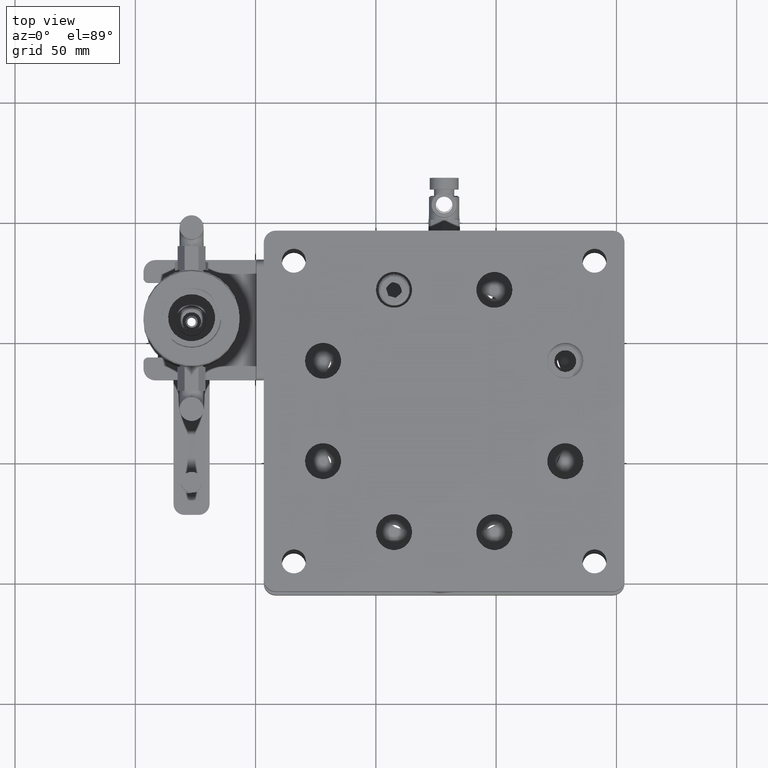
[diagram: clean part render]
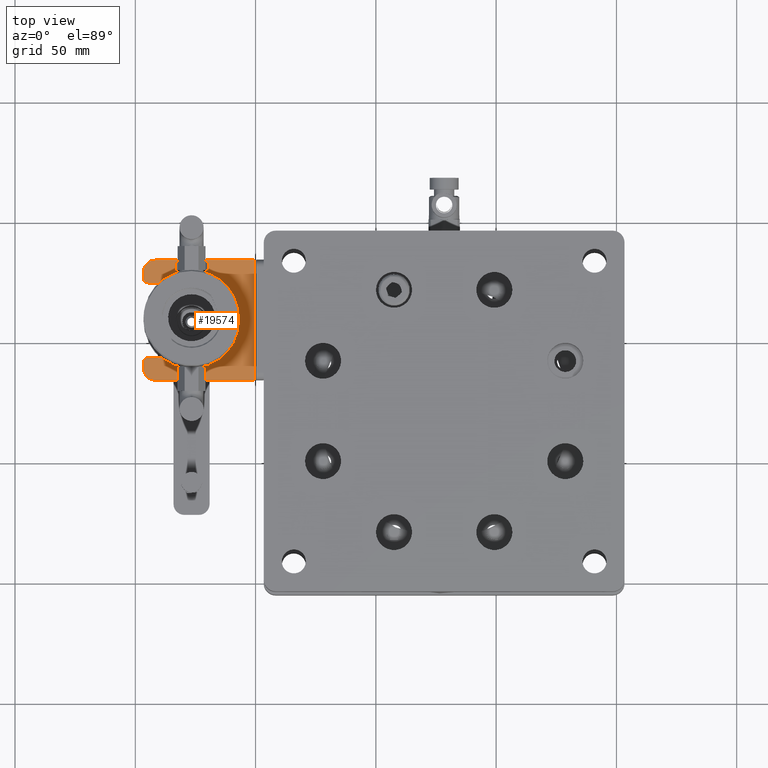
[diagram: same view with one face highlighted and labeled with its STEP entity id]
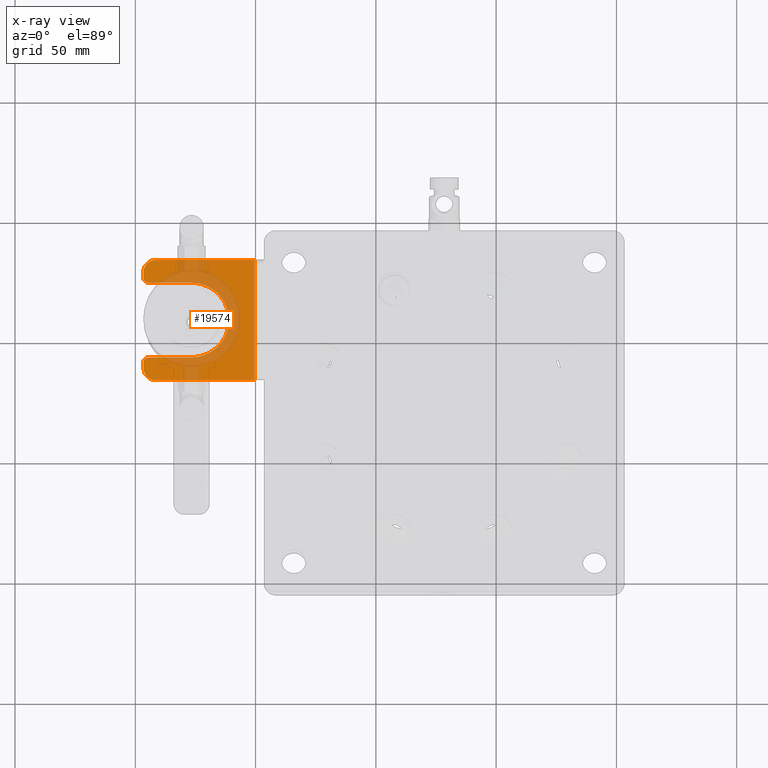
[diagram: x-ray of the same camera — body ghosted, the highlighted face saturated]
A machine part, top view. The second image highlights one B-rep face of the part: STEP entity #19574.
The next image is the same camera in x-ray: the body ghosted, the highlighted face saturated — about 33% of this face is hidden behind the body in this view.
In plain terms, the highlighted planar face has unit normal (0, -0, -1).
Its self-contained STEP definition (entity closure, byte-faithful):
#14 = VERTEX_POINT ( 'NONE', #24655 ) ;
#22 = LINE ( 'NONE', #19989, #2747 ) ;
#331 = EDGE_CURVE ( 'NONE', #22707, #14, #22, .T. ) ;
#335 = CARTESIAN_POINT ( 'NONE',  ( 31.80739317009367895, -4.941664590774364818, 206.9977288244027989 ) ) ;
#595 = CARTESIAN_POINT ( 'NONE',  ( 26.17114597159121203, -7.178598920431192631, 206.9977288244027989 ) ) ;
#854 = CARTESIAN_POINT ( 'NONE',  ( 23.85554052902556776, -7.431651882863382852, 206.9977288244028557 ) ) ;
#987 = CARTESIAN_POINT ( 'NONE',  ( 38.62854838633338517, 10.85789273996218895, 206.9977288244028557 ) ) ;
#1091 = VERTEX_POINT ( 'NONE', #9174 ) ;
#1113 = CARTESIAN_POINT ( 'NONE',  ( 37.43528226001209447, 1.521029408966009244, 206.9977288244028273 ) ) ;
#1224 = ORIENTED_EDGE ( 'NONE', *, *, #4713, .F. ) ;
#1225 = LINE ( 'NONE', #23293, #24732 ) ;
#1238 = CARTESIAN_POINT ( 'NONE',  ( 35.09811851442083253, 18.27208861365406989, 206.9977288244027704 ) ) ;
#1377 = CARTESIAN_POINT ( 'NONE',  ( 38.64398118336313814, 10.77216579050709910, 206.9977288244028273 ) ) ;
#1503 = CARTESIAN_POINT ( 'NONE',  ( 8.381601348765686410, 33.06834811713662248, 206.9977288244026852 ) ) ;
#1504 = CARTESIAN_POINT ( 'NONE',  ( 37.27626597196371705, 14.97285608896639175, 206.9977288244027989 ) ) ;
#2026 = ORIENTED_EDGE ( 'NONE', *, *, #24084, .F. ) ;
#2310 = CARTESIAN_POINT ( 'NONE',  ( 28.67650398158892244, -6.500196550344449875, 206.9977288244027704 ) ) ;
#2455 = DIRECTION ( 'NONE',  ( 3.367708973580515638E-15, -4.440892098500624683E-16, -1.000000000000000000 ) ) ;
#2747 = VECTOR ( 'NONE', #17743, 1000.000000000000000 ) ;
#2832 = CARTESIAN_POINT ( 'NONE',  ( 33.58534184529314359, -3.648169048505090384, 206.9977288244028841 ) ) ;
#2868 = DIRECTION ( 'NONE',  ( -1.705100911579236852E-17, 1.000000000000000000, -5.742283640785712774E-32 ) ) ;
#2961 = CARTESIAN_POINT ( 'NONE',  ( 29.92892005693684254, 22.12202902838191676, 206.9977288244027989 ) ) ;
#2985 = EDGE_CURVE ( 'NONE', #14749, #4893, #1225, .T. ) ;
#2991 = CARTESIAN_POINT ( 'NONE',  ( 3.381601348765660209, -7.431651882863383740, 206.9977288244028273 ) ) ;
#3013 = LINE ( 'NONE', #9368, #16236 ) ;
#3090 = CARTESIAN_POINT ( 'NONE',  ( 35.82381958607199834, -1.182059133337275636, 206.9977288244028273 ) ) ;
#3215 = CARTESIAN_POINT ( 'NONE',  ( 31.42509691014484119, 21.32832218693843629, 206.9977288244027989 ) ) ;
#3340 = CARTESIAN_POINT ( 'NONE',  ( 38.58151739534483227, 5.031967247320956460, 206.9977288244028273 ) ) ;
#3478 = CARTESIAN_POINT ( 'NONE',  ( 36.20692307798516651, -0.6360171220128838510, 206.9977288244028557 ) ) ;
#3523 = DIRECTION ( 'NONE',  ( 3.364129091754579954E-15, -4.440892098500624683E-16, -1.000000000000000000 ) ) ;
#3650 = FACE_OUTER_BOUND ( 'NONE', #23993, .T. ) ;
#3668 = CARTESIAN_POINT ( 'NONE',  ( 5.381601348765688186, -7.431651882863383740, 206.9977288244027704 ) ) ;
#3678 = AXIS2_PLACEMENT_3D ( 'NONE', #24526, #2455, #8288 ) ;
#3734 = CARTESIAN_POINT ( 'NONE',  ( 26.26380947766714868, 23.29805025608051849, 206.9977288244028557 ) ) ;
#4125 = CARTESIAN_POINT ( 'NONE',  ( 28.61984845075607709, 22.66505327936793535, 206.9977288244027989 ) ) ;
#4294 = CARTESIAN_POINT ( 'NONE',  ( 25.79367775280923780, -7.243641637335971772, 206.9977288244027420 ) ) ;
#4315 = AXIS2_PLACEMENT_3D ( 'NONE', #23988, #10014, #22148 ) ;
#4423 = CARTESIAN_POINT ( 'NONE',  ( 25.38448072788018095, -7.304963975482907657, 206.9977288244028273 ) ) ;
#4557 = CARTESIAN_POINT ( 'NONE',  ( 23.38160134876569174, -7.431651882863382852, 206.9977288244027989 ) ) ;
#4622 = CARTESIAN_POINT ( 'NONE',  ( 5.381601348765686410, 23.56834811713662958, 206.9977288244026568 ) ) ;
#4713 = EDGE_CURVE ( 'NONE', #4893, #22707, #24767, .T. ) ;
#4812 = CARTESIAN_POINT ( 'NONE',  ( 29.57392910479502390, -6.150645970511837923, 206.9977288244027989 ) ) ;
#4893 = VERTEX_POINT ( 'NONE', #11453 ) ;
#4902 = CARTESIAN_POINT ( 'NONE',  ( 49.64500134876569604, 8.068348117136622477, 206.9977288244028557 ) ) ;
#4937 = CARTESIAN_POINT ( 'NONE',  ( 33.96357542852532418, 19.40671053146514069, 206.9977288244028273 ) ) ;
#5065 = CARTESIAN_POINT ( 'NONE',  ( 38.53764446191755866, 4.816758490882826038, 206.9977288244028273 ) ) ;
#5160 = DIRECTION ( 'NONE',  ( -1.493973430190899685E-30, -1.000000000000000000, 4.440892098500624683E-16 ) ) ;
#5197 = CARTESIAN_POINT ( 'NONE',  ( 29.51066982273448147, 22.30616982117612679, 206.9977288244027420 ) ) ;
#5322 = CARTESIAN_POINT ( 'NONE',  ( 33.37013916568623983, 19.94202542535509792, 206.9977288244027989 ) ) ;
#5443 = B_SPLINE_CURVE_WITH_KNOTS ( 'NONE', 3,
 ( #4557, #854, #14357, #4423, #4294, #18710, #18443, #10520, #595, #12376, #8788, #12629, #2310, #16851, #8659, #16724, #6677, #4812, #24892, #6807, #14743, #10394, #14876, #335, #20944, #2832, #13150, #21196, #3090, #13409, #3478, #15390, #17107, #11043, #25544, #1113, #15125, #9442, #9049, #11431, #23170, #19612, #11171, #19097, #5065, #3340, #21449, #19227, #19485, #23434, #5450, #11302, #25023, #13536, #9178, #11562, #1377, #7324, #987, #19351, #21321, #9574, #21585, #17504, #7451, #15515, #25150, #7189, #1504, #6931, #17235, #14998, #13280, #7056, #25279, #1238, #4937, #5322, #15260, #23046, #23558, #13019, #21065, #3215, #23308, #2961, #5197, #9309, #17373, #25418, #20253, #4125, #19741, #5712, #13792, #21841, #5986, #3734, #23950, #11809, #9694, #19868 ),
 .UNSPECIFIED., .F., .F.,
 ( 4, 1, 1, 1, 1, 2, 2, 1, 1, 1, 1, 2, 2, 1, 1, 1, 2, 2, 2, 1, 1, 1, 2, 2, 1, 1, 1, 1, 2, 2, 1, 1, 1, 1, 2, 2, 2, 1, 1, 1, 1, 2, 2, 1, 1, 1, 1, 2, 2, 1, 1, 1, 2, 2, 2, 1, 1, 1, 2, 2, 1, 1, 1, 1, 2, 2, 1, 1, 1, 1, 2, 2, 4 ),
 ( 0.000000000000000000, 0.03125000000000197065, 0.04687500000000295597, 0.05468750000000344863, 0.05859375000000368455, 0.06054687500000369149, 0.06250000000000369149, 0.09375000000000213718, 0.1093750000000013600, 0.1171875000000009714, 0.1210937500000007772, 0.1230468750000005829, 0.1250000000000003886, 0.1562499999999967804, 0.1718749999999950595, 0.1796874999999941436, 0.1835937499999936995, 0.1874999999999932554, 0.2499999999999877875, 0.2812499999999851785, 0.2968749999999837352, 0.3046874999999831246, 0.3085937499999827360, 0.3124999999999822919, 0.3437499999999789613, 0.3593749999999773515, 0.3671874999999766298, 0.3710937499999764078, 0.3730468749999762967, 0.3749999999999761857, 0.4062499999999730771, 0.4218749999999715228, 0.4296874999999708011, 0.4335937499999704681, 0.4355468749999702460, 0.4374999999999700240, 0.4999999999999645284, 0.5312499999999618083, 0.5468749999999604761, 0.5546874999999598099, 0.5585937499999594769, 0.5605468749999593658, 0.5624999999999592548, 0.5937499999999596989, 0.6093749999999599209, 0.6171874999999600320, 0.6210937499999601430, 0.6230468749999602540, 0.6249999999999603650, 0.6562499999999618083, 0.6718749999999624745, 0.6796874999999628075, 0.6835937499999630296, 0.6874999999999632516, 0.7499999999999679146, 0.7812499999999704681, 0.7968749999999716893, 0.8046874999999721334, 0.8085937499999723554, 0.8124999999999725775, 0.8437499999999769074, 0.8593749999999791278, 0.8671874999999803491, 0.8710937499999809042, 0.8730468749999812372, 0.8749999999999815703, 0.9062499999999872324, 0.9218749999999900080, 0.9296874999999913403, 0.9335937499999920064, 0.9355468749999923395, 0.9374999999999926725, 1.000000000000000000 ),
 .UNSPECIFIED. ) ;
#5450 = CARTESIAN_POINT ( 'NONE',  ( 38.88156892279152999, 7.120645015925630261, 206.9977288244028273 ) ) ;
#5712 = CARTESIAN_POINT ( 'NONE',  ( 27.06137408492132934, 23.12897805478881708, 206.9977288244027989 ) ) ;
#5840 = DIRECTION ( 'NONE',  ( -1.000000000000000000, -1.705100911579087400E-17, 7.572169165377782691E-33 ) ) ;
#5986 = CARTESIAN_POINT ( 'NONE',  ( 26.32551049407440402, 23.28624535211575974, 206.9977288244028273 ) ) ;
#6247 = VERTEX_POINT ( 'NONE', #21913 ) ;
#6270 = CARTESIAN_POINT ( 'NONE',  ( 5.381601348765685522, -9.431651882863384628, 206.9977288244026852 ) ) ;
#6677 = CARTESIAN_POINT ( 'NONE',  ( 29.05664061211095728, -6.355415835507248090, 206.9977288244028841 ) ) ;
#6740 = VECTOR ( 'NONE', #5160, 1000.000000000000000 ) ;
#6807 = CARTESIAN_POINT ( 'NONE',  ( 31.08529475229357075, -5.386257587535075331, 206.9977288244027704 ) ) ;
#6872 = CIRCLE ( 'NONE', #4315, 5.000000000000000888 ) ;
#6931 = CARTESIAN_POINT ( 'NONE',  ( 36.83620705342710977, 15.77204152068522802, 206.9977288244027989 ) ) ;
#7056 = CARTESIAN_POINT ( 'NONE',  ( 36.39161405667800153, 16.49413993846306425, 206.9977288244027704 ) ) ;
#7189 = CARTESIAN_POINT ( 'NONE',  ( 37.60059543640630864, 14.26067587318174645, 206.9977288244028273 ) ) ;
#7310 = ORIENTED_EDGE ( 'NONE', *, *, #15334, .F. ) ;
#7324 = CARTESIAN_POINT ( 'NONE',  ( 38.63353426976330951, 10.83048168520702426, 206.9977288244029410 ) ) ;
#7451 = CARTESIAN_POINT ( 'NONE',  ( 37.83913358294720553, 13.65679710044171813, 206.9977288244028273 ) ) ;
#7553 = CIRCLE ( 'NONE', #21908, 2.000000000000000000 ) ;
#7947 = VERTEX_POINT ( 'NONE', #20251 ) ;
#8238 = VERTEX_POINT ( 'NONE', #9498 ) ;
#8246 = ORIENTED_EDGE ( 'NONE', *, *, #9523, .F. ) ;
#8269 = EDGE_CURVE ( 'NONE', #8238, #7947, #3013, .T. ) ;
#8288 = DIRECTION ( 'NONE',  ( 1.000000000000000000, 2.081668171172168119E-15, 5.551115123125781913E-15 ) ) ;
#8434 = LINE ( 'NONE', #20980, #13943 ) ;
#8503 = CARTESIAN_POINT ( 'NONE',  ( 3.381601348765684634, -11.93165188286338996, 206.9977288244026568 ) ) ;
#8659 = CARTESIAN_POINT ( 'NONE',  ( 28.97005033207094016, -6.389184117044481859, 206.9977288244028557 ) ) ;
#8788 = CARTESIAN_POINT ( 'NONE',  ( 27.42737405463771694, -6.909208616216139909, 206.9977288244027989 ) ) ;
#8865 = AXIS2_PLACEMENT_3D ( 'NONE', #21630, #3523, #11604 ) ;
#8900 = ORIENTED_EDGE ( 'NONE', *, *, #331, .F. ) ;
#8978 = ORIENTED_EDGE ( 'NONE', *, *, #18072, .F. ) ;
#9049 = CARTESIAN_POINT ( 'NONE',  ( 37.74464125930790459, 2.241325941414797907, 206.9977288244028557 ) ) ;
#9174 = CARTESIAN_POINT ( 'NONE',  ( 23.38160134876569174, -7.431651882863382852, 206.9977288244027989 ) ) ;
#9178 = CARTESIAN_POINT ( 'NONE',  ( 38.69360351630649575, 10.48035742972604112, 206.9977288244028273 ) ) ;
#9309 = CARTESIAN_POINT ( 'NONE',  ( 29.29953836504928333, 22.39439878118596639, 206.9977288244027989 ) ) ;
#9368 = CARTESIAN_POINT ( 'NONE',  ( 50.38160134876569884, -16.93165188286338463, 206.9977288244028557 ) ) ;
#9412 = EDGE_CURVE ( 'NONE', #12245, #6247, #19898, .T. ) ;
#9442 = CARTESIAN_POINT ( 'NONE',  ( 37.70765201281538026, 2.150411100853199642, 206.9977288244027704 ) ) ;
#9498 = CARTESIAN_POINT ( 'NONE',  ( 49.64500134876569604, -16.93165188286338463, 206.9977288244028273 ) ) ;
#9523 = EDGE_CURVE ( 'NONE', #14780, #17761, #7553, .T. ) ;
#9574 = CARTESIAN_POINT ( 'NONE',  ( 38.09672769440106777, 12.94977974610758764, 206.9977288244028841 ) ) ;
#9694 = CARTESIAN_POINT ( 'NONE',  ( 24.32983524972316047, 23.56834811713662248, 206.9977288244027704 ) ) ;
#10014 = DIRECTION ( 'NONE',  ( 3.367708973580515638E-15, -4.440892098500624683E-16, -1.000000000000000000 ) ) ;
#10125 = EDGE_CURVE ( 'NONE', #12245, #14749, #11810, .T. ) ;
#10388 = DIRECTION ( 'NONE',  ( 3.367708973580515638E-15, -4.440892098500624683E-16, -1.000000000000000000 ) ) ;
#10394 = CARTESIAN_POINT ( 'NONE',  ( 31.64312534292722390, -5.046599172553468904, 206.9977288244028273 ) ) ;
#10453 = EDGE_CURVE ( 'NONE', #1091, #17761, #20974, .T. ) ;
#10520 = CARTESIAN_POINT ( 'NONE',  ( 26.14374569939121784, -7.183582808903611117, 206.9977288244028273 ) ) ;
#10766 = EDGE_CURVE ( 'NONE', #18539, #14780, #8434, .T. ) ;
#10960 = DIRECTION ( 'NONE',  ( -1.000000000000000000, -1.646870496244552803E-16, 7.313574174026246242E-32 ) ) ;
#11043 = CARTESIAN_POINT ( 'NONE',  ( 36.64157541856836531, 0.02485255575787892815, 206.9977288244028273 ) ) ;
#11171 = CARTESIAN_POINT ( 'NONE',  ( 38.22073570081374783, 3.541146773029060668, 206.9977288244028557 ) ) ;
#11302 = CARTESIAN_POINT ( 'NONE',  ( 38.88161756175276196, 8.542199667742130131, 206.9977288244027989 ) ) ;
#11431 = CARTESIAN_POINT ( 'NONE',  ( 37.76911783142732304, 2.302031375150336068, 206.9977288244028841 ) ) ;
#11453 = CARTESIAN_POINT ( 'NONE',  ( 3.381601348765682857, 28.06834811713661537, 206.9977288244026568 ) ) ;
#11562 = CARTESIAN_POINT ( 'NONE',  ( 38.65939875682200721, 10.68466979807513795, 206.9977288244028273 ) ) ;
#11604 = DIRECTION ( 'NONE',  ( -1.000000000000000000, 0.000000000000000000, -3.364129091754579954E-15 ) ) ;
#11809 = CARTESIAN_POINT ( 'NONE',  ( 25.26997768718590365, 23.48209252062226327, 206.9977288244028557 ) ) ;
#11810 = CIRCLE ( 'NONE', #23191, 2.000000000000000000 ) ;
#12038 = DIRECTION ( 'NONE',  ( 1.000000000000000000, 0.000000000000000000, 0.000000000000000000 ) ) ;
#12160 = ORIENTED_EDGE ( 'NONE', *, *, #2985, .F. ) ;
#12245 = VERTEX_POINT ( 'NONE', #4622 ) ;
#12376 = CARTESIAN_POINT ( 'NONE',  ( 26.69615169415746081, -7.081463859545717554, 206.9977288244027704 ) ) ;
#12629 = CARTESIAN_POINT ( 'NONE',  ( 28.26303297773748824, -6.646778228496435403, 206.9977288244027989 ) ) ;
#13019 = CARTESIAN_POINT ( 'NONE',  ( 31.97506838082204439, 20.96822413220792569, 206.9977288244028273 ) ) ;
#13150 = CARTESIAN_POINT ( 'NONE',  ( 34.71996376308921128, -2.513625962629751243, 206.9977288244028841 ) ) ;
#13280 = CARTESIAN_POINT ( 'NONE',  ( 36.42634087111913743, 16.44026866265852860, 206.9977288244027989 ) ) ;
#13409 = CARTESIAN_POINT ( 'NONE',  ( 36.09409177217760600, -0.8015467851534051613, 206.9977288244027989 ) ) ;
#13536 = CARTESIAN_POINT ( 'NONE',  ( 38.75493472093075553, 10.07111248232975598, 206.9977288244028273 ) ) ;
#13568 = CARTESIAN_POINT ( 'NONE',  ( 3.381601348765666870, 23.56834811713662603, 206.9977288244026568 ) ) ;
#13587 = PLANE ( 'NONE',  #8865 ) ;
#13792 = CARTESIAN_POINT ( 'NONE',  ( 26.63319097501564769, 23.22439123029051800, 206.9977288244027704 ) ) ;
#13943 = VECTOR ( 'NONE', #2868, 1000.000000000000000 ) ;
#14357 = CARTESIAN_POINT ( 'NONE',  ( 24.56354832826900747, -7.399306034170497703, 206.9977288244027989 ) ) ;
#14743 = CARTESIAN_POINT ( 'NONE',  ( 31.47696459648745915, -5.150809492424097691, 206.9977288244028273 ) ) ;
#14749 = VERTEX_POINT ( 'NONE', #24769 ) ;
#14780 = VERTEX_POINT ( 'NONE', #18841 ) ;
#14876 = CARTESIAN_POINT ( 'NONE',  ( 31.75352189428375738, -4.976391405218720365, 206.9977288244027989 ) ) ;
#14998 = CARTESIAN_POINT ( 'NONE',  ( 36.49654863845216823, 16.32987211130543415, 206.9977288244027989 ) ) ;
#15125 = CARTESIAN_POINT ( 'NONE',  ( 37.61942305280585686, 1.939279643168144718, 206.9977288244027989 ) ) ;
#15260 = CARTESIAN_POINT ( 'NONE',  ( 32.63200859923076536, 20.51056635444949094, 206.9977288244027989 ) ) ;
#15334 = EDGE_CURVE ( 'NONE', #7947, #18539, #6872, .T. ) ;
#15390 = CARTESIAN_POINT ( 'NONE',  ( 36.28147736383578348, -0.5251189149213634222, 206.9977288244027704 ) ) ;
#15515 = CARTESIAN_POINT ( 'NONE',  ( 37.81636399984287067, 13.71534552269456242, 206.9977288244027704 ) ) ;
#15583 = VECTOR ( 'NONE', #25827, 1000.000000000000000 ) ;
#15998 = CARTESIAN_POINT ( 'NONE',  ( 5.381601348765685522, 25.56834811713663314, 206.9977288244026568 ) ) ;
#16236 = VECTOR ( 'NONE', #10960, 1000.000000000000000 ) ;
#16724 = CARTESIAN_POINT ( 'NONE',  ( 29.02859875432371339, -6.366414533940373488, 206.9977288244028557 ) ) ;
#16851 = CARTESIAN_POINT ( 'NONE',  ( 28.88214986909001780, -6.423064090195424569, 206.9977288244027420 ) ) ;
#17107 = CARTESIAN_POINT ( 'NONE',  ( 36.31921381691558537, -0.4681850123444522005, 206.9977288244027989 ) ) ;
#17235 = CARTESIAN_POINT ( 'NONE',  ( 36.60075895832041226, 16.16371136487049043, 206.9977288244027989 ) ) ;
#17373 = CARTESIAN_POINT ( 'NONE',  ( 29.20862352448761357, 22.43138802767862572, 206.9977288244027420 ) ) ;
#17504 = CARTESIAN_POINT ( 'NONE',  ( 37.87301355609844933, 13.56889663746070518, 206.9977288244027989 ) ) ;
#17608 = ORIENTED_EDGE ( 'NONE', *, *, #9412, .T. ) ;
#17709 = VECTOR ( 'NONE', #5840, 1000.000000000000000 ) ;
#17743 = DIRECTION ( 'NONE',  ( 1.000000000000000000, 1.646870496244552803E-16, -7.313574174026246242E-32 ) ) ;
#17761 = VERTEX_POINT ( 'NONE', #3668 ) ;
#18070 = ORIENTED_EDGE ( 'NONE', *, *, #10766, .F. ) ;
#18072 = EDGE_CURVE ( 'NONE', #14, #8238, #23010, .T. ) ;
#18438 = DIRECTION ( 'NONE',  ( -1.000000000000000000, 0.000000000000000000, 0.000000000000000000 ) ) ;
#18443 = CARTESIAN_POINT ( 'NONE',  ( 26.08544007379140695, -7.194027822544017958, 206.9977288244027136 ) ) ;
#18539 = VERTEX_POINT ( 'NONE', #8503 ) ;
#18710 = CARTESIAN_POINT ( 'NONE',  ( 25.99795897155463820, -7.209442641061728274, 206.9977288244028841 ) ) ;
#18841 = CARTESIAN_POINT ( 'NONE',  ( 3.381601348765685522, -9.431651882863384628, 206.9977288244026852 ) ) ;
#19081 = DIRECTION ( 'NONE',  ( -1.705100911579236852E-17, 1.000000000000000000, -5.742283640785712774E-32 ) ) ;
#19097 = CARTESIAN_POINT ( 'NONE',  ( 38.44223128641440468, 4.388575380974423901, 206.9977288244028557 ) ) ;
#19139 = ORIENTED_EDGE ( 'NONE', *, *, #10453, .T. ) ;
#19227 = CARTESIAN_POINT ( 'NONE',  ( 38.61130348770925025, 5.186139988234548248, 206.9977288244027989 ) ) ;
#19351 = CARTESIAN_POINT ( 'NONE',  ( 38.53141332544979036, 11.38289846252775206, 206.9977288244027704 ) ) ;
#19485 = CARTESIAN_POINT ( 'NONE',  ( 38.61744459850714861, 5.218799690656080514, 206.9977288244028273 ) ) ;
#19490 = ORIENTED_EDGE ( 'NONE', *, *, #10125, .F. ) ;
#19574 = ADVANCED_FACE ( 'NONE', ( #3650 ), #13587, .F. ) ;
#19612 = CARTESIAN_POINT ( 'NONE',  ( 37.97830651099435073, 2.830101015141230913, 206.9977288244027989 ) ) ;
#19741 = CARTESIAN_POINT ( 'NONE',  ( 27.90880269286449789, 22.90748246918932551, 206.9977288244027704 ) ) ;
#19868 = CARTESIAN_POINT ( 'NONE',  ( 23.38160134876568463, 23.56834811713662248, 206.9977288244027136 ) ) ;
#19898 = LINE ( 'NONE', #13568, #15583 ) ;
#19989 = CARTESIAN_POINT ( 'NONE',  ( 3.381601348765694848, 33.06834811713662248, 206.9977288244026852 ) ) ;
#20251 = CARTESIAN_POINT ( 'NONE',  ( 8.381601348765681081, -16.93165188286338818, 206.9977288244027704 ) ) ;
#20253 = CARTESIAN_POINT ( 'NONE',  ( 29.11627065298838701, 22.46850512761906060, 206.9977288244027989 ) ) ;
#20562 = ORIENTED_EDGE ( 'NONE', *, *, #8269, .F. ) ;
#20944 = CARTESIAN_POINT ( 'NONE',  ( 32.75870222450286917, -4.319765762402212772, 206.9977288244028841 ) ) ;
#20974 = LINE ( 'NONE', #2991, #17709 ) ;
#20980 = CARTESIAN_POINT ( 'NONE',  ( 3.381601348765685078, -16.93165188286339173, 206.9977288244026852 ) ) ;
#21065 = CARTESIAN_POINT ( 'NONE',  ( 31.91813447824669936, 21.00596058528662624, 206.9977288244027989 ) ) ;
#21196 = CARTESIAN_POINT ( 'NONE',  ( 35.25527865697540619, -1.920189699795691984, 206.9977288244027704 ) ) ;
#21321 = CARTESIAN_POINT ( 'NONE',  ( 38.35915808212153166, 12.11412082300751614, 206.9977288244028273 ) ) ;
#21449 = CARTESIAN_POINT ( 'NONE',  ( 38.59949858374417175, 5.124438971826715594, 206.9977288244028841 ) ) ;
#21585 = CARTESIAN_POINT ( 'NONE',  ( 37.95014601624811945, 13.36325074995937356, 206.9977288244028273 ) ) ;
#21630 = CARTESIAN_POINT ( 'NONE',  ( 50.38160134876572016, 8.068348117136622477, 206.9977288244028557 ) ) ;
#21841 = CARTESIAN_POINT ( 'NONE',  ( 26.41798221857930073, 23.26826416371685013, 206.9977288244027704 ) ) ;
#21908 = AXIS2_PLACEMENT_3D ( 'NONE', #6270, #10388, #18438 ) ;
#21913 = CARTESIAN_POINT ( 'NONE',  ( 23.38160134876568463, 23.56834811713662248, 206.9977288244027136 ) ) ;
#22148 = DIRECTION ( 'NONE',  ( 1.000000000000000000, 1.040834085586084059E-15, 5.551115123125781913E-15 ) ) ;
#22194 = DIRECTION ( 'NONE',  ( 3.367708973580515638E-15, -4.440892098500624683E-16, -1.000000000000000000 ) ) ;
#22707 = VERTEX_POINT ( 'NONE', #1503 ) ;
#23010 = LINE ( 'NONE', #4902, #6740 ) ;
#23046 = CARTESIAN_POINT ( 'NONE',  ( 32.25149625105056828, 20.78083854055238078, 206.9977288244027704 ) ) ;
#23170 = CARTESIAN_POINT ( 'NONE',  ( 37.78175835924829329, 2.333678812914237621, 206.9977288244029126 ) ) ;
#23191 = AXIS2_PLACEMENT_3D ( 'NONE', #15998, #22194, #12038 ) ;
#23293 = CARTESIAN_POINT ( 'NONE',  ( 3.381601348765685078, -16.93165188286339173, 206.9977288244026568 ) ) ;
#23308 = CARTESIAN_POINT ( 'NONE',  ( 30.74936980066934566, 21.72301595169528809, 206.9977288244027704 ) ) ;
#23434 = CARTESIAN_POINT ( 'NONE',  ( 38.79531330211693074, 6.179796455701931812, 206.9977288244027989 ) ) ;
#23558 = CARTESIAN_POINT ( 'NONE',  ( 32.08596658791208966, 20.89366984635839586, 206.9977288244027989 ) ) ;
#23950 = CARTESIAN_POINT ( 'NONE',  ( 26.23115525409043869, 23.30419035281137496, 206.9977288244027704 ) ) ;
#23988 = CARTESIAN_POINT ( 'NONE',  ( 8.381601348765681081, -11.93165188286338818, 206.9977288244026852 ) ) ;
#23993 = EDGE_LOOP ( 'NONE', ( #7310, #20562, #8978, #8900, #1224, #12160, #19490, #17608, #2026, #19139, #8246, #18070 ) ) ;
#24084 = EDGE_CURVE ( 'NONE', #1091, #6247, #5443, .T. ) ;
#24526 = CARTESIAN_POINT ( 'NONE',  ( 8.381601348765681081, 28.06834811713661892, 206.9977288244026852 ) ) ;
#24655 = CARTESIAN_POINT ( 'NONE',  ( 49.64500134876568893, 33.06834811713662958, 206.9977288244027704 ) ) ;
#24732 = VECTOR ( 'NONE', #19081, 1000.000000000000000 ) ;
#24767 = CIRCLE ( 'NONE', #3678, 5.000000000000000888 ) ;
#24769 = CARTESIAN_POINT ( 'NONE',  ( 3.381601348765684190, 25.56834811713663314, 206.9977288244026568 ) ) ;
#24892 = CARTESIAN_POINT ( 'NONE',  ( 30.28610932056784222, -5.826316506075112756, 206.9977288244028841 ) ) ;
#25023 = CARTESIAN_POINT ( 'NONE',  ( 38.84928387280019280, 9.250141744744782457, 206.9977288244028273 ) ) ;
#25150 = CARTESIAN_POINT ( 'NONE',  ( 37.80536530141002771, 13.74338738048090036, 206.9977288244027704 ) ) ;
#25279 = CARTESIAN_POINT ( 'NONE',  ( 35.76971522828331729, 17.44544899289845930, 206.9977288244027989 ) ) ;
#25418 = CARTESIAN_POINT ( 'NONE',  ( 29.14791809075202167, 22.45586459979813654, 206.9977288244028273 ) ) ;
#25544 = CARTESIAN_POINT ( 'NONE',  ( 37.03626918332586371, 0.7005796652336858665, 206.9977288244027989 ) ) ;
#25827 = DIRECTION ( 'NONE',  ( 1.000000000000000000, -1.564213384818899341E-16, 6.946502861011158438E-32 ) ) ;